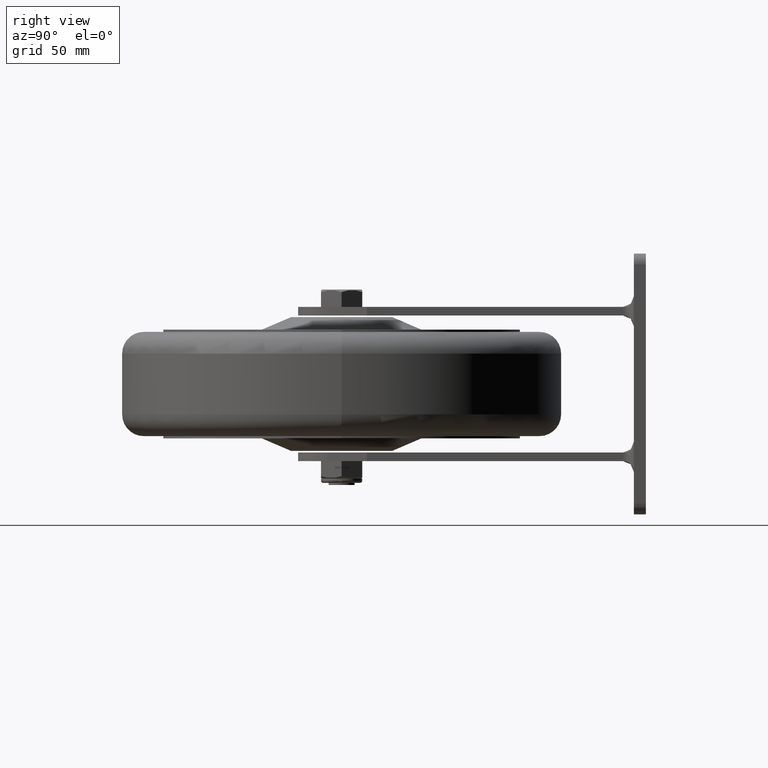
[diagram: clean part render]
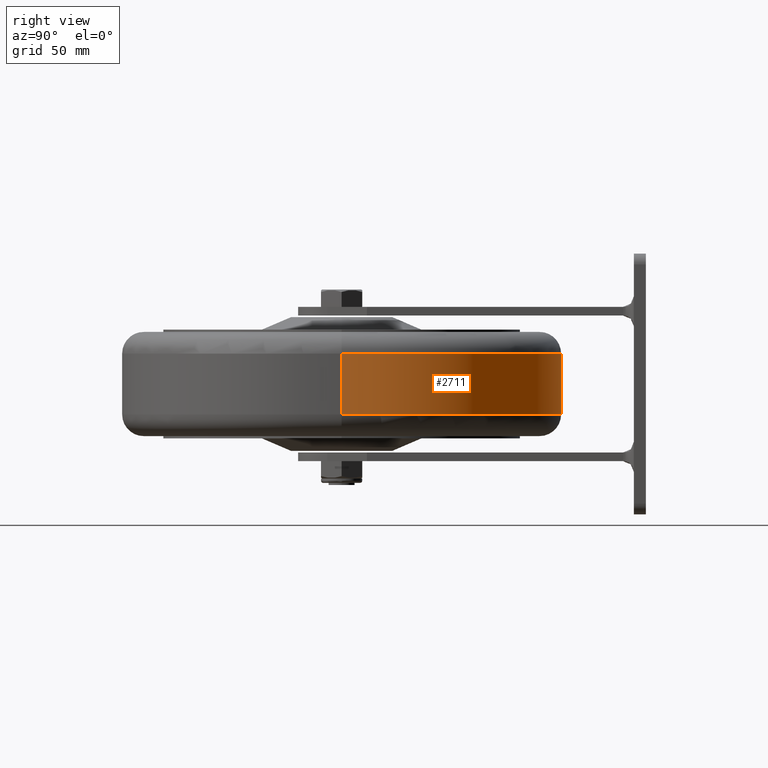
[diagram: same view with one face highlighted and labeled with its STEP entity id]
A machine part, right view. The second image highlights one B-rep face of the part: STEP entity #2711.
In plain terms, the highlighted cylindrical surface (partial cylindrical patch) has radius 101 mm, axis along (0, 0, -1).
Its self-contained STEP definition (entity closure, byte-faithful):
#445 = AXIS2_PLACEMENT_3D ( 'NONE', #1465, #706, #2311 ) ;
#499 = VECTOR ( 'NONE', #3261, 1000.000000000000000 ) ;
#598 = FACE_OUTER_BOUND ( 'NONE', #3152, .T. ) ;
#684 = CARTESIAN_POINT ( 'NONE',  ( 101.0000000000000000, 1.236893267138826732E-14, 30.75500100071695186 ) ) ;
#706 = DIRECTION ( 'NONE',  ( 0.000000000000000000, 0.000000000000000000, -1.000000000000000000 ) ) ;
#789 = EDGE_CURVE ( 'NONE', #2749, #5346, #3833, .T. ) ;
#1086 = VERTEX_POINT ( 'NONE', #5053 ) ;
#1465 = CARTESIAN_POINT ( 'NONE',  ( 0.000000000000000000, 0.000000000000000000, 30.75500100071695186 ) ) ;
#1613 = LINE ( 'NONE', #684, #499 ) ;
#1704 = CARTESIAN_POINT ( 'NONE',  ( 0.000000000000000000, 0.000000000000000000, 13.99999999999999822 ) ) ;
#1979 = CARTESIAN_POINT ( 'NONE',  ( 101.0000000000000000, 1.236893267138826732E-14, 13.99999999999999822 ) ) ;
#2081 = AXIS2_PLACEMENT_3D ( 'NONE', #1704, #4743, #3850 ) ;
#2208 = DIRECTION ( 'NONE',  ( 0.000000000000000000, 0.000000000000000000, -1.000000000000000000 ) ) ;
#2273 = EDGE_CURVE ( 'NONE', #2749, #5287, #4501, .T. ) ;
#2311 = DIRECTION ( 'NONE',  ( -1.000000000000000000, 0.000000000000000000, 0.000000000000000000 ) ) ;
#2313 = VECTOR ( 'NONE', #2208, 1000.000000000000000 ) ;
#2348 = DIRECTION ( 'NONE',  ( -1.000000000000000000, 0.000000000000000000, 0.000000000000000000 ) ) ;
#2704 = ORIENTED_EDGE ( 'NONE', *, *, #2273, .T. ) ;
#2711 = ADVANCED_FACE ( 'NONE', ( #598 ), #3653, .T. ) ;
#2737 = CIRCLE ( 'NONE', #3366, 101.0000000000000000 ) ;
#2749 = VERTEX_POINT ( 'NONE', #3179 ) ;
#2971 = ORIENTED_EDGE ( 'NONE', *, *, #789, .F. ) ;
#3075 = CARTESIAN_POINT ( 'NONE',  ( -101.0000000000000000, 0.000000000000000000, 30.75500100071695186 ) ) ;
#3152 = EDGE_LOOP ( 'NONE', ( #2704, #5342, #5279, #2971 ) ) ;
#3179 = CARTESIAN_POINT ( 'NONE',  ( -101.0000000000000000, 0.000000000000000000, 13.99999999999999822 ) ) ;
#3261 = DIRECTION ( 'NONE',  ( 0.000000000000000000, 0.000000000000000000, -1.000000000000000000 ) ) ;
#3271 = CARTESIAN_POINT ( 'NONE',  ( 0.000000000000000000, 0.000000000000000000, -13.99999999999999822 ) ) ;
#3366 = AXIS2_PLACEMENT_3D ( 'NONE', #3271, #4087, #2348 ) ;
#3653 = CYLINDRICAL_SURFACE ( 'NONE', #445, 101.0000000000000000 ) ;
#3833 = LINE ( 'NONE', #3075, #2313 ) ;
#3850 = DIRECTION ( 'NONE',  ( 1.000000000000000000, 0.000000000000000000, 0.000000000000000000 ) ) ;
#4087 = DIRECTION ( 'NONE',  ( -0.000000000000000000, -0.000000000000000000, 1.000000000000000000 ) ) ;
#4250 = EDGE_CURVE ( 'NONE', #5287, #1086, #1613, .T. ) ;
#4501 = CIRCLE ( 'NONE', #2081, 101.0000000000000000 ) ;
#4743 = DIRECTION ( 'NONE',  ( -0.000000000000000000, -0.000000000000000000, -1.000000000000000000 ) ) ;
#5053 = CARTESIAN_POINT ( 'NONE',  ( 101.0000000000000000, 1.236893267138826732E-14, -13.99999999999999822 ) ) ;
#5092 = EDGE_CURVE ( 'NONE', #1086, #5346, #2737, .T. ) ;
#5177 = CARTESIAN_POINT ( 'NONE',  ( -101.0000000000000000, 0.000000000000000000, -13.99999999999999822 ) ) ;
#5279 = ORIENTED_EDGE ( 'NONE', *, *, #5092, .T. ) ;
#5287 = VERTEX_POINT ( 'NONE', #1979 ) ;
#5342 = ORIENTED_EDGE ( 'NONE', *, *, #4250, .T. ) ;
#5346 = VERTEX_POINT ( 'NONE', #5177 ) ;